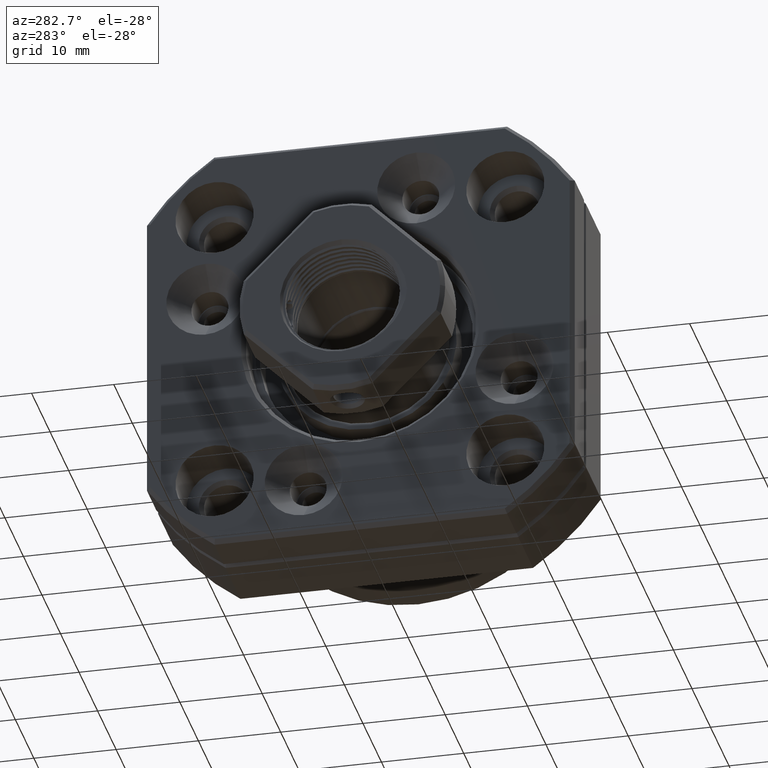
[diagram: clean part render]
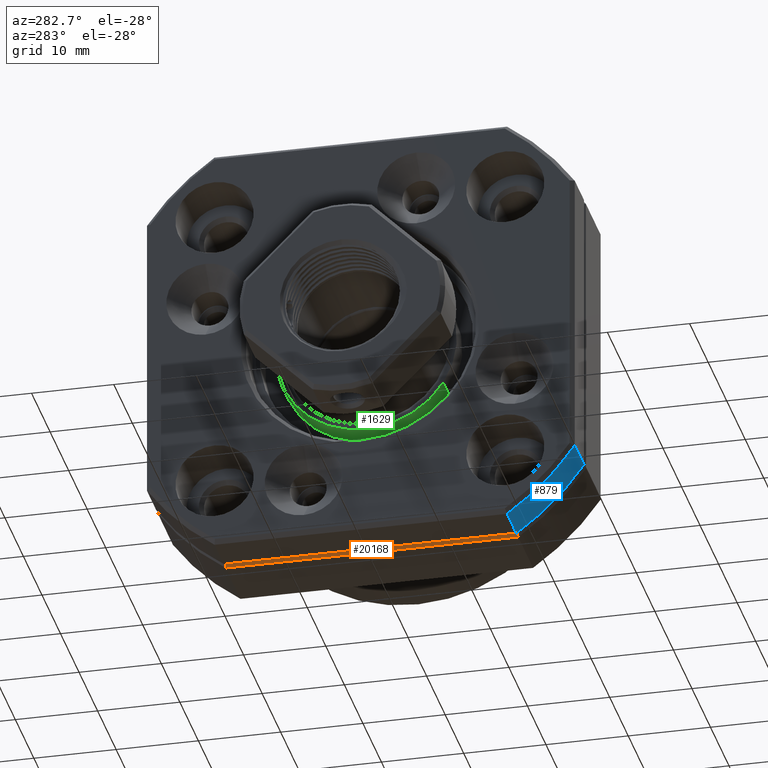
[diagram: same view with three faces highlighted in distinct colors, each labeled with its STEP entity id]
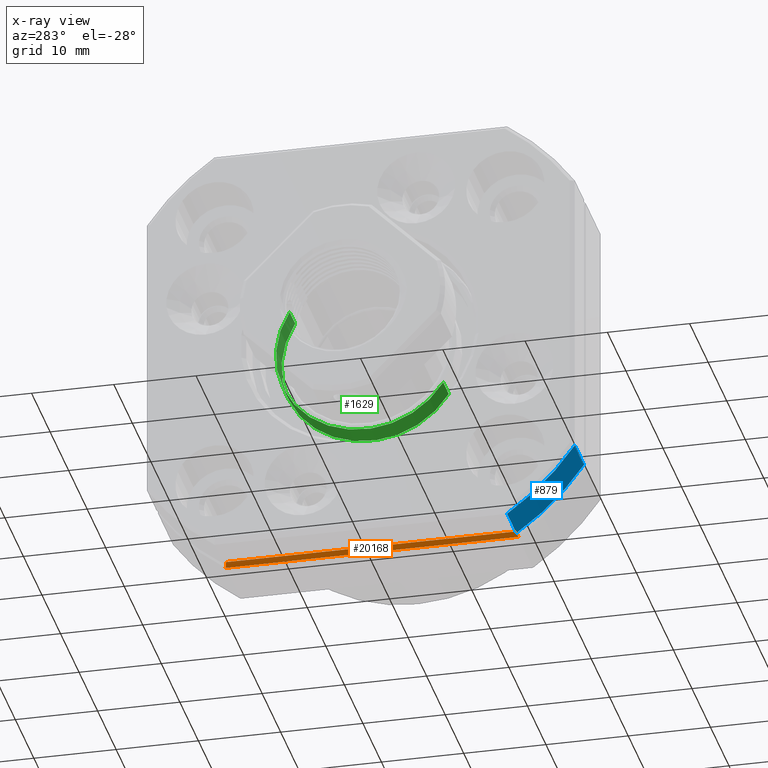
[diagram: x-ray of the same camera — body ghosted, the three highlighted faces saturated]
A machine part, auxiliary view with three faces highlighted in distinct colors.
The next image is the same camera in x-ray (body ghosted, the three faces saturated) — at least one of them is partly hidden behind the body in this view.
Their STEP definitions:

[orange] entity #20168 — the highlighted planar face has unit normal (-0.7071, 0, -0.7071).
#5 = VERTEX_POINT ( 'NONE', #2812 ) ;
#2812 = CARTESIAN_POINT ( 'NONE',  ( 0.5000000000000004400, -17.78341924377867800, -26.00000000000004300 ) ) ;
#17849 = CARTESIAN_POINT ( 'NONE',  ( 0.5000000000000004400, -17.78341924377867800, -26.00000000000004300 ) ) ;
#17850 = CARTESIAN_POINT ( 'NONE',  ( 0.3332998979955274500, -17.73186276026691400, -25.83329989799557300 ) ) ;
#17851 = CARTESIAN_POINT ( 'NONE',  ( 0.1666328089827016600, -17.68009230269336000, -25.66663280898275100 ) ) ;
#17852 = CARTESIAN_POINT ( 'NONE',  ( 0.0000000000000000000, -17.62810256380412700, -25.50000000000005000 ) ) ;
#17854 = B_SPLINE_CURVE_WITH_KNOTS ( 'NONE', 3,
 ( #17852, #17851, #17850, #17849 ),
 .UNSPECIFIED., .F., .F.,
 ( 4, 4 ),
 ( 0.0000000000000000000, 0.0007239635840830053700 ),
 .UNSPECIFIED. ) ;
#17855 = CARTESIAN_POINT ( 'NONE',  ( 0.5000000000000004400, 17.78341924377867800, -26.00000000000004300 ) ) ;
#17856 = CARTESIAN_POINT ( 'NONE',  ( 0.3332998979955274500, 17.73186276026691700, -25.83329989799557300 ) ) ;
#17857 = CARTESIAN_POINT ( 'NONE',  ( 0.1666328089827007200, 17.68009230269337100, -25.66663280898275100 ) ) ;
#17858 = CARTESIAN_POINT ( 'NONE',  ( 0.0000000000000000000, 17.62810256380413400, -25.50000000000005000 ) ) ;
#17860 = B_SPLINE_CURVE_WITH_KNOTS ( 'NONE', 3,
 ( #17858, #17857, #17856, #17855 ),
 .UNSPECIFIED., .F., .F.,
 ( 4, 4 ),
 ( 0.0000000000000000000, 0.0007239635840830039600 ),
 .UNSPECIFIED. ) ;
#17861 = CARTESIAN_POINT ( 'NONE',  ( 0.0000000000000000000, 17.62810256380413400, -25.50000000000005000 ) ) ;
#17886 = DIRECTION ( 'NONE',  ( -0.7071067811865524600, 0.0000000000000000000, 0.7071067811865426900 ) ) ;
#17887 = DIRECTION ( 'NONE',  ( -0.7071067811865426900, 0.0000000000000000000, -0.7071067811865524600 ) ) ;
#17888 = CARTESIAN_POINT ( 'NONE',  ( 0.0000000000000000000, 15.99999999999999600, -25.50000000000005000 ) ) ;
#17889 = AXIS2_PLACEMENT_3D ( 'NONE', #17888, #17887, #17886 ) ;
#17891 = PLANE ( 'NONE',  #17889 ) ;
#17896 = FACE_OUTER_BOUND ( 'NONE', #20157, .T. ) ;
#17953 = DIRECTION ( 'NONE',  ( 0.0000000000000000000, -1.000000000000000000, 0.0000000000000000000 ) ) ;
#17954 = VECTOR ( 'NONE', #17953, 1000.000000000000000 ) ;
#17955 = CARTESIAN_POINT ( 'NONE',  ( 0.0000000000000000000, -17.78341924377867800, -25.50000000000005000 ) ) ;
#17960 = LINE ( 'NONE', #17955, #17954 ) ;
#18003 = CARTESIAN_POINT ( 'NONE',  ( 0.0000000000000000000, -17.62810256380412700, -25.50000000000005000 ) ) ;
#18158 = DIRECTION ( 'NONE',  ( -0.0000000000000000000, 1.000000000000000000, 0.0000000000000000000 ) ) ;
#18159 = VECTOR ( 'NONE', #18158, 1000.000000000000000 ) ;
#18160 = CARTESIAN_POINT ( 'NONE',  ( 0.5000000000000004400, 17.78341924377867800, -26.00000000000004300 ) ) ;
#18161 = LINE ( 'NONE', #18160, #18159 ) ;
#18522 = CARTESIAN_POINT ( 'NONE',  ( 0.5000000000000004400, 17.78341924377867800, -26.00000000000004300 ) ) ;
#20153 = ORIENTED_EDGE ( 'NONE', *, *, #20324, .F. ) ;
#20155 = EDGE_CURVE ( 'NONE', #20161, #20553, #17860, .T. ) ;
#20157 = EDGE_LOOP ( 'NONE', ( #20158, #20153, #20160, #20164 ) ) ;
#20158 = ORIENTED_EDGE ( 'NONE', *, *, #20155, .T. ) ;
#20160 = ORIENTED_EDGE ( 'NONE', *, *, #20163, .F. ) ;
#20161 = VERTEX_POINT ( 'NONE', #17861 ) ;
#20163 = EDGE_CURVE ( 'NONE', #20237, #5, #17854, .T. ) ;
#20164 = ORIENTED_EDGE ( 'NONE', *, *, #20230, .F. ) ;
#20168 = ADVANCED_FACE ( 'NONE', ( #17896 ), #17891, .T. ) ;
#20230 = EDGE_CURVE ( 'NONE', #20161, #20237, #17960, .T. ) ;
#20237 = VERTEX_POINT ( 'NONE', #18003 ) ;
#20324 = EDGE_CURVE ( 'NONE', #5, #20553, #18161, .T. ) ;
#20553 = VERTEX_POINT ( 'NONE', #18522 ) ;

[blue] entity #879 — the highlighted cylindrical surface (partial cylindrical patch) has radius 31.5 mm, axis along (-1, 0, 0).
#879 = ADVANCED_FACE ( 'NONE', ( #4377 ), #4376, .T. ) ;
#880 = EDGE_LOOP ( 'NONE', ( #881, #942, #946, #949 ) ) ;
#881 = ORIENTED_EDGE ( 'NONE', *, *, #939, .F. ) ;
#939 = EDGE_CURVE ( 'NONE', #940, #941, #4455, .T. ) ;
#940 = VERTEX_POINT ( 'NONE', #4451 ) ;
#941 = VERTEX_POINT ( 'NONE', #4450 ) ;
#942 = ORIENTED_EDGE ( 'NONE', *, *, #943, .T. ) ;
#943 = EDGE_CURVE ( 'NONE', #940, #945, #4514, .T. ) ;
#945 = VERTEX_POINT ( 'NONE', #4505 ) ;
#946 = ORIENTED_EDGE ( 'NONE', *, *, #947, .F. ) ;
#947 = EDGE_CURVE ( 'NONE', #948, #945, #4504, .T. ) ;
#948 = VERTEX_POINT ( 'NONE', #4500 ) ;
#949 = ORIENTED_EDGE ( 'NONE', *, *, #950, .T. ) ;
#950 = EDGE_CURVE ( 'NONE', #948, #941, #4498, .T. ) ;
#4371 = DIRECTION ( 'NONE',  ( 0.0000000000000000000, 0.0000000000000000000, 1.000000000000000000 ) ) ;
#4372 = DIRECTION ( 'NONE',  ( -1.000000000000000000, 0.0000000000000000000, 0.0000000000000000000 ) ) ;
#4373 = CARTESIAN_POINT ( 'NONE',  ( -48.83312411036066400, -3.469446951953614200E-015, 6.938893903907228400E-015 ) ) ;
#4374 = AXIS2_PLACEMENT_3D ( 'NONE', #4373, #4372, #4371 ) ;
#4376 = CYLINDRICAL_SURFACE ( 'NONE', #4374, 31.50000000000000000 ) ;
#4377 = FACE_OUTER_BOUND ( 'NONE', #880, .T. ) ;
#4450 = CARTESIAN_POINT ( 'NONE',  ( -5.499999999999999100, -17.78341924377874500, -25.99999999999999300 ) ) ;
#4451 = CARTESIAN_POINT ( 'NONE',  ( -0.4999999999999943900, -17.78341924377874500, -25.99999999999999300 ) ) ;
#4452 = DIRECTION ( 'NONE',  ( -1.000000000000000000, 0.0000000000000000000, 0.0000000000000000000 ) ) ;
#4453 = VECTOR ( 'NONE', #4452, 1000.000000000000000 ) ;
#4454 = CARTESIAN_POINT ( 'NONE',  ( -48.83312411036066400, -17.78341924377874500, -25.99999999999999300 ) ) ;
#4455 = LINE ( 'NONE', #4454, #4453 ) ;
#4494 = DIRECTION ( 'NONE',  ( 0.0000000000000000000, 0.0000000000000000000, -1.000000000000000000 ) ) ;
#4495 = DIRECTION ( 'NONE',  ( 1.000000000000000000, 0.0000000000000000000, 0.0000000000000000000 ) ) ;
#4496 = CARTESIAN_POINT ( 'NONE',  ( -5.499999999999999100, -3.469446951953614200E-015, 6.938893903907228400E-015 ) ) ;
#4497 = AXIS2_PLACEMENT_3D ( 'NONE', #4496, #4495, #4494 ) ;
#4498 = CIRCLE ( 'NONE', #4497, 31.50000000000000000 ) ;
#4500 = CARTESIAN_POINT ( 'NONE',  ( -5.499999999999999100, -26.00000000000000400, -17.78341924377873400 ) ) ;
#4501 = DIRECTION ( 'NONE',  ( 1.000000000000000000, -0.0000000000000000000, -0.0000000000000000000 ) ) ;
#4502 = VECTOR ( 'NONE', #4501, 1000.000000000000000 ) ;
#4503 = CARTESIAN_POINT ( 'NONE',  ( -48.83312411036066400, -26.00000000000000400, -17.78341924377873400 ) ) ;
#4504 = LINE ( 'NONE', #4503, #4502 ) ;
#4505 = CARTESIAN_POINT ( 'NONE',  ( -0.4999999999999943900, -26.00000000000000400, -17.78341924377873400 ) ) ;
#4510 = DIRECTION ( 'NONE',  ( 0.0000000000000000000, 0.0000000000000000000, 1.000000000000000000 ) ) ;
#4511 = DIRECTION ( 'NONE',  ( -1.000000000000000000, 0.0000000000000000000, 0.0000000000000000000 ) ) ;
#4512 = CARTESIAN_POINT ( 'NONE',  ( -0.5000000000000013300, -3.469446951953614200E-015, 6.938893903907228400E-015 ) ) ;
#4513 = AXIS2_PLACEMENT_3D ( 'NONE', #4512, #4511, #4510 ) ;
#4514 = CIRCLE ( 'NONE', #4513, 31.50000000000000000 ) ;

[green] entity #1629 — the highlighted cylindrical surface (partial cylindrical patch) has radius 11 mm, axis along (-1, -0, -0).
#1584 = VERTEX_POINT ( 'NONE', #5551 ) ;
#1585 = VERTEX_POINT ( 'NONE', #5550 ) ;
#1587 = EDGE_CURVE ( 'NONE', #1585, #1588, #5549, .T. ) ;
#1588 = VERTEX_POINT ( 'NONE', #5545 ) ;
#1591 = VERTEX_POINT ( 'NONE', #5539 ) ;
#1593 = EDGE_CURVE ( 'NONE', #1584, #1591, #5537, .T. ) ;
#1625 = EDGE_CURVE ( 'NONE', #1585, #1584, #5598, .T. ) ;
#1629 = ADVANCED_FACE ( 'NONE', ( #5650 ), #5649, .T. ) ;
#1630 = EDGE_LOOP ( 'NONE', ( #1631, #1632, #1633, #1685 ) ) ;
#1631 = ORIENTED_EDGE ( 'NONE', *, *, #1587, .F. ) ;
#1632 = ORIENTED_EDGE ( 'NONE', *, *, #1625, .T. ) ;
#1633 = ORIENTED_EDGE ( 'NONE', *, *, #1593, .T. ) ;
#1685 = ORIENTED_EDGE ( 'NONE', *, *, #1686, .F. ) ;
#1686 = EDGE_CURVE ( 'NONE', #1588, #1591, #5753, .T. ) ;
#5534 = DIRECTION ( 'NONE',  ( -1.000000000000000000, -6.313221783727809100E-031, -4.098835561708893300E-031 ) ) ;
#5535 = VECTOR ( 'NONE', #5534, 1000.000000000000000 ) ;
#5536 = CARTESIAN_POINT ( 'NONE',  ( -54.14089506172835800, -9.336357517198377900, -5.816564992420620000 ) ) ;
#5537 = LINE ( 'NONE', #5536, #5535 ) ;
#5539 = CARTESIAN_POINT ( 'NONE',  ( -2.499999999999994200, -9.336357517198379700, -5.816564992420620900 ) ) ;
#5545 = CARTESIAN_POINT ( 'NONE',  ( -2.499999999999994200, 9.336357517198370800, 5.816564992420636000 ) ) ;
#5546 = DIRECTION ( 'NONE',  ( -1.000000000000000000, -6.313221783727809100E-031, -4.098835561708893300E-031 ) ) ;
#5547 = VECTOR ( 'NONE', #5546, 1000.000000000000000 ) ;
#5548 = CARTESIAN_POINT ( 'NONE',  ( -54.14089506172835800, 9.336357517198370800, 5.816564992420636000 ) ) ;
#5549 = LINE ( 'NONE', #5548, #5547 ) ;
#5550 = CARTESIAN_POINT ( 'NONE',  ( 0.5000000000000006700, 9.336357517198369000, 5.816564992420635100 ) ) ;
#5551 = CARTESIAN_POINT ( 'NONE',  ( 0.5000000000000006700, -9.336357517198377900, -5.816564992420620000 ) ) ;
#5598 = CIRCLE ( 'NONE', #5654, 10.99999999999998900 ) ;
#5644 = DIRECTION ( 'NONE',  ( 0.0000000000000000000, -0.8487597742907621000, -0.5287786356746029300 ) ) ;
#5645 = DIRECTION ( 'NONE',  ( -1.000000000000000000, -6.313221783727809100E-031, -4.098835561708893300E-031 ) ) ;
#5646 = CARTESIAN_POINT ( 'NONE',  ( -54.14089506172835800, -3.469446951953643400E-015, 6.938893903907209400E-015 ) ) ;
#5647 = AXIS2_PLACEMENT_3D ( 'NONE', #5646, #5645, #5644 ) ;
#5649 = CYLINDRICAL_SURFACE ( 'NONE', #5647, 10.99999999999998900 ) ;
#5650 = FACE_OUTER_BOUND ( 'NONE', #1630, .T. ) ;
#5651 = DIRECTION ( 'NONE',  ( 0.0000000000000000000, -0.8487597742907621000, -0.5287786356746029300 ) ) ;
#5652 = DIRECTION ( 'NONE',  ( -1.000000000000000000, -6.313221783727809100E-031, -4.098835561708893300E-031 ) ) ;
#5653 = CARTESIAN_POINT ( 'NONE',  ( 0.5000000000000006700, -3.469446951953609500E-015, 6.938893903907231500E-015 ) ) ;
#5654 = AXIS2_PLACEMENT_3D ( 'NONE', #5653, #5652, #5651 ) ;
#5692 = CARTESIAN_POINT ( 'NONE',  ( -2.499999999999994200, -3.469446951953611000E-015, 6.938893903907230000E-015 ) ) ;
#5750 = DIRECTION ( 'NONE',  ( 0.0000000000000000000, -0.8487597742907621000, -0.5287786356746029300 ) ) ;
#5751 = DIRECTION ( 'NONE',  ( -1.000000000000000000, -6.313221783727809100E-031, -4.098835561708893300E-031 ) ) ;
#5752 = AXIS2_PLACEMENT_3D ( 'NONE', #5692, #5751, #5750 ) ;
#5753 = CIRCLE ( 'NONE', #5752, 10.99999999999999100 ) ;